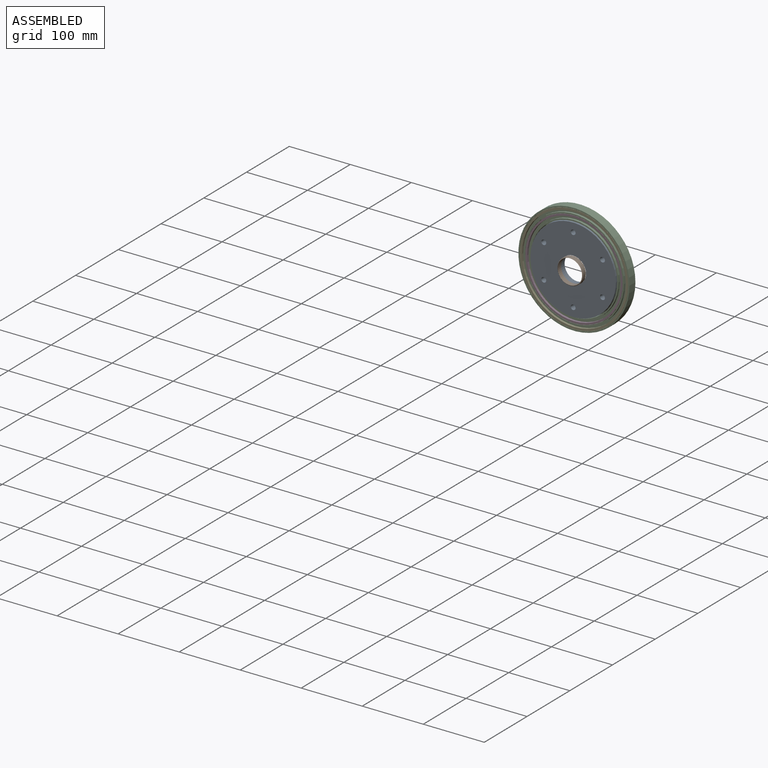
[diagram: assembled view]
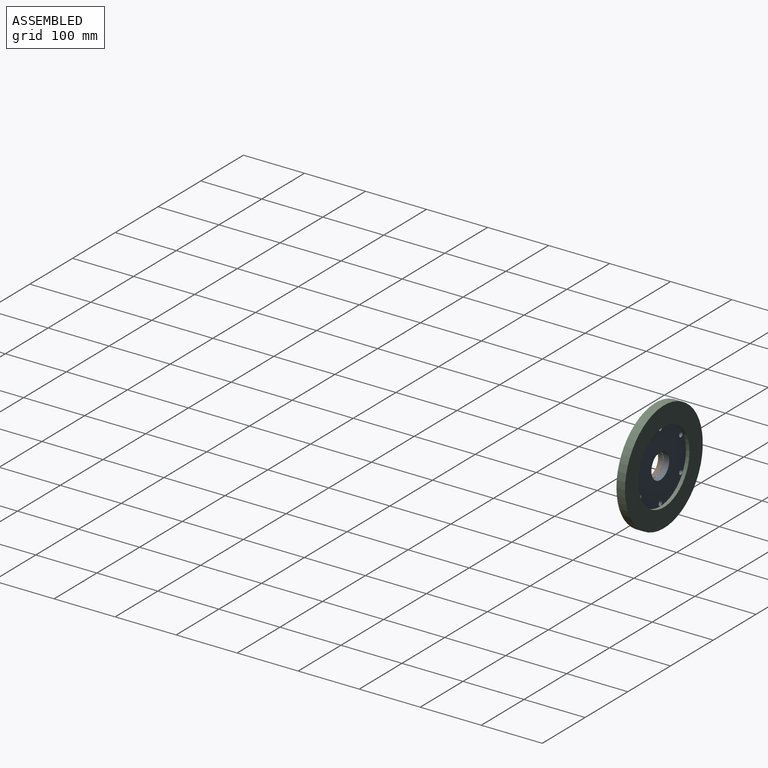
[diagram: assembled view, second angle]
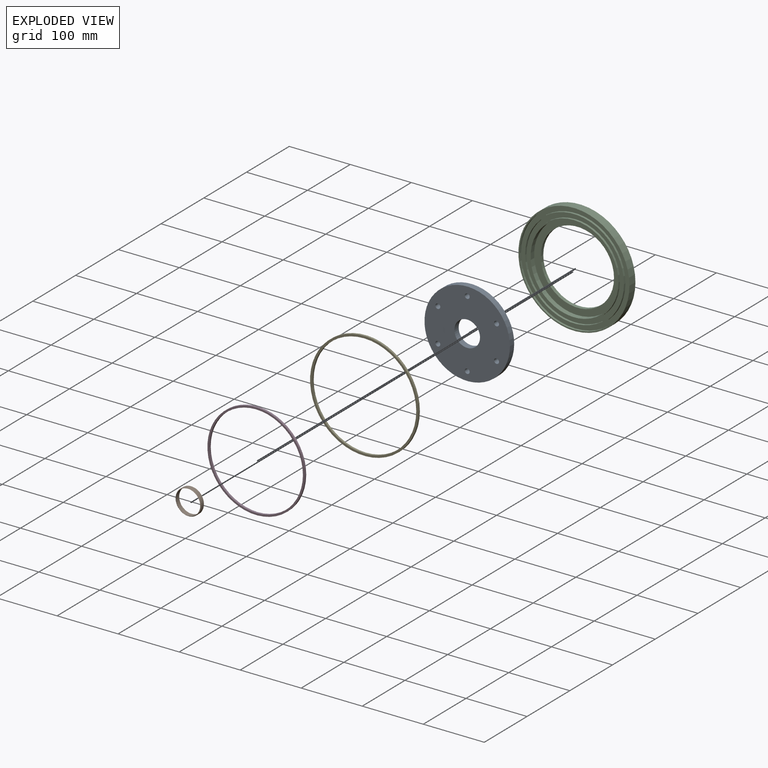
[diagram: exploded view]
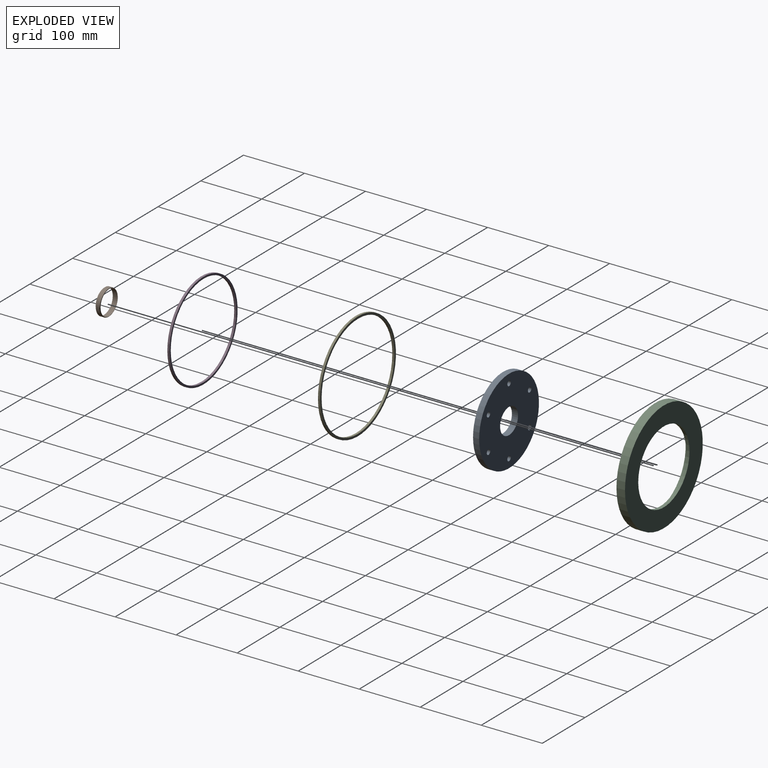
[diagram: exploded view, second angle]
ASSEMBLY  parts=5 mates=5
PART A: 10 faces, bbox 140x10x140 mm
  f0: cylinder r=4mm len=10mm, axis (0,1,0), area 251.3mm2, adj f8,f9
  f1: cylinder r=4mm len=10mm, axis (0,1,0), area 251.3mm2, adj f8,f9
  f2: cylinder r=4mm len=10mm, axis (0,1,0), area 251.3mm2, adj f8,f9
  f3: cylinder r=4mm len=10mm, axis (0,1,0), area 251.3mm2, adj f8,f9
  f4: cylinder r=4mm len=10mm, axis (0,1,0), area 251.3mm2, adj f8,f9
  f5: cylinder r=4mm len=10mm, axis (0,1,0), area 251.3mm2, adj f8,f9
  f6: cylinder r=21mm len=42mm, axis (0,1,0), area 1319.5mm2, adj f8,f9
  f7: cylinder r=70mm len=140mm, axis (0,1,0), area 4398.2mm2, adj f8,f9
  f8: plane 140x140mm, normal (0,-1,0), area 13706.8mm2, adj f0,f1,f2,f3,f4,f5,f6,f7
  f9: plane 140x140mm, normal (0,1,0), area 13706.8mm2, adj f0,f1,f2,f3,f4,f5,f6,f7
PART B: 4 faces, bbox 45.5x8x45.5 mm
  f0: cylinder r=21mm len=42mm, axis (0,-1,0), area 791.7mm2, adj f1,f2
  f1: cone r=21mm half-angle=45deg, axis (0,-1,0), area 182.2mm2, adj f0,f3
  f2: torus R=20mm, axis (0,-1,0), area 203.7mm2, adj f0,f3
  f3: cylinder r=20mm len=40mm, axis (0,1,0), area 1005.3mm2, adj f1,f2
PART C: 14 faces, bbox 182x182x14 mm
  f0: cylinder r=60mm len=120mm, axis (0,0,1), area 2186.5mm2, adj f1,f13
  f1: plane 142x142mm, normal (0,0,1), area 4527mm2, adj f0,f2
  f2: cylinder r=71mm len=142mm, axis (0,0,1), area 3658.1mm2, adj f1,f3
  f3: plane 146x146mm, normal (0,0,1), area 904.8mm2, adj f2,f4
  f4: cylinder r=73mm len=146mm, axis (0,0,1), area 1605.4mm2, adj f3,f5
  f5: plane 160x160mm, normal (0,0,1), area 3364.6mm2, adj f4,f6
  f6: cylinder r=80mm len=160mm, axis (0,0,1), area 1759.3mm2, adj f5,f7
  f7: plane 164x164mm, normal (0,0,1), area 1017.9mm2, adj f6,f8
  f8: cylinder r=82mm len=164mm, axis (0,0,1), area 1803.3mm2, adj f7,f9
  f9: plane 178x178mm, normal (0,0,1), area 3760.5mm2, adj f8,f10
  f10: cylinder r=89mm len=178mm, axis (0,0,1), area 1957.2mm2, adj f9,f11
  f11: plane 182x182mm, normal (0,0,1), area 1131mm2, adj f10,f12
  f12: cylinder r=91mm len=182mm, axis (0,0,1), area 8004.8mm2, adj f11,f13
  f13: plane 182x182mm, normal (0,0,-1), area 14705.8mm2, adj f0,f12
PART D: 4 faces, bbox 159.5x3.5x159.5 mm
  f0: cylinder r=76.75mm len=153.5mm, axis (0,1,0), area 1687.8mm2, adj f2,f3
  f1: cylinder r=79.75mm len=159.5mm, axis (0,1,0), area 1753.8mm2, adj f2,f3
  f2: plane 159.5x159.5mm, normal (0,-1,0), area 1475mm2, adj f0,f1
  f3: plane 159.5x159.5mm, normal (0,1,0), area 1475mm2, adj f0,f1
PART E: 4 faces, bbox 177.5x3.5x177.5 mm
  f0: cylinder r=85.25mm len=170.5mm, axis (0,1,0), area 1874.7mm2, adj f2,f3
  f1: cylinder r=88.75mm len=177.5mm, axis (0,1,0), area 1951.7mm2, adj f2,f3
  f2: plane 177.5x177.5mm, normal (0,-1,0), area 1913.2mm2, adj f0,f1
  f3: plane 177.5x177.5mm, normal (0,1,0), area 1913.2mm2, adj f0,f1
PLACE A rot(axis=(1,0,0),180deg) t=(-146.29,-69.07,-126.93)mm
PLACE B rot(axis=(1,0,0),180deg) t=(-146.29,-68.77,-126.93)mm
PLACE C rot(axis=(1,0,0),90deg) t=(-146.29,-53.27,-126.93)mm
PLACE D rot(axis=(1,0,0),180deg) t=(-146.29,-67.27,-126.93)mm
PLACE E t=(-146.29,-63.77,-126.93)mm
MATE fastened D.f0 <-> C.f0  axis (0,1,0) through (-146.29,-63.77,-126.93)mm
MATE fastened B.f0 <-> A.f6  axis (0,1,0) through (-146.29,-69.07,-126.93)mm
MATE fastened C.f0 <-> E.f0  axis (0,-1,0) through (-146.29,-63.77,-126.93)mm
MATE slider C.f0 <-> A.f6  axis (0,1,0) through (-146.29,-53.27,-126.93)mm
MATE fastened C.f0 <-> A.f6  axis (0,-1,0) through (-146.29,-59.07,-126.93)mm
